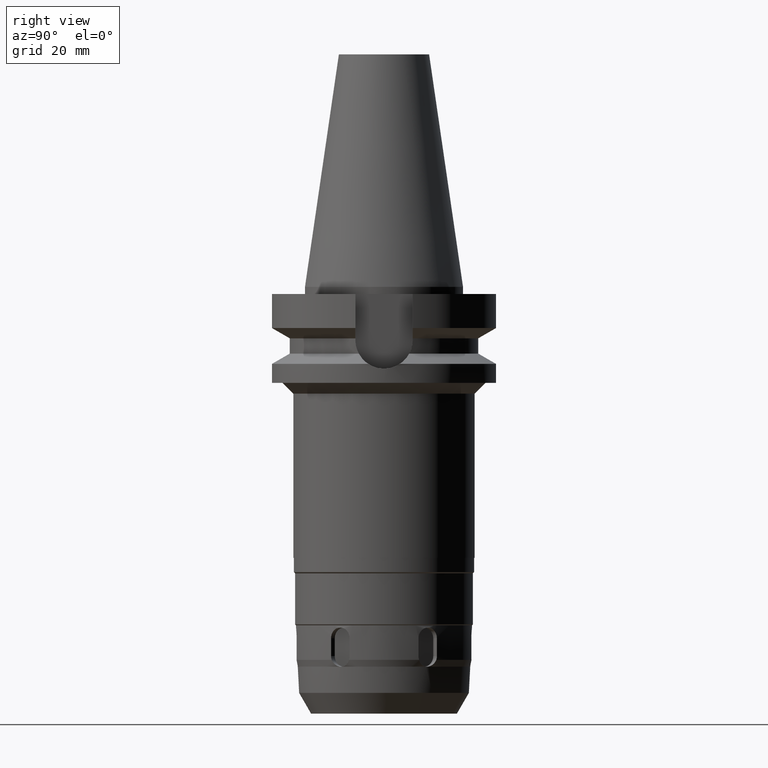
[diagram: clean part render]
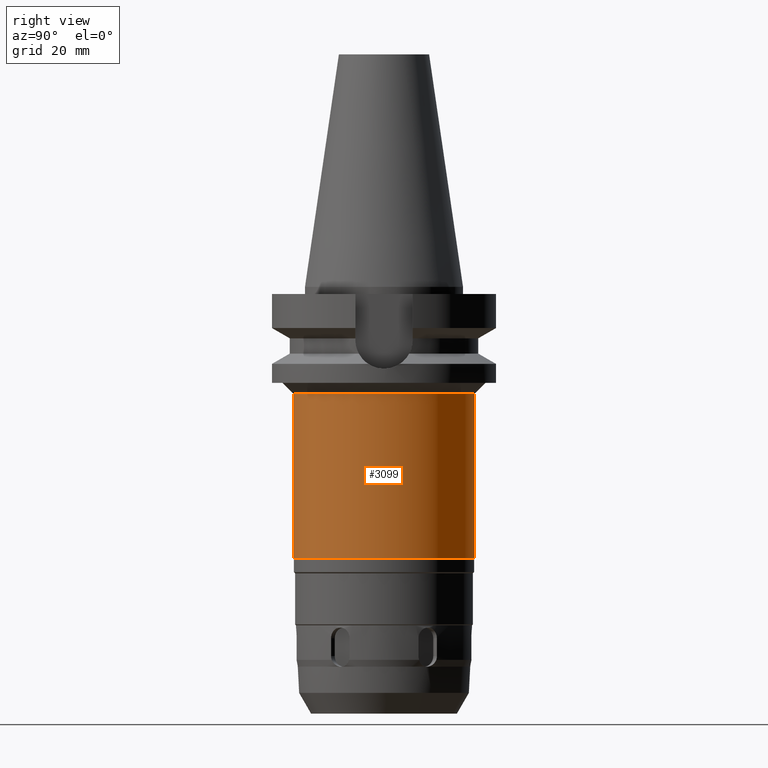
[diagram: same view with one face highlighted and labeled with its STEP entity id]
A machine part, right view. The second image highlights one B-rep face of the part: STEP entity #3099.
In plain terms, the highlighted cylindrical surface (partial cylindrical patch) has radius 25.5 mm, axis along (0, 0, -1).
Its self-contained STEP definition (entity closure, byte-faithful):
#681=CARTESIAN_POINT('',(0.E0,0.E0,-3.E1));
#682=DIRECTION('',(0.E0,0.E0,-1.E0));
#683=DIRECTION('',(0.E0,1.E0,0.E0));
#684=AXIS2_PLACEMENT_3D('',#681,#682,#683);
#689=DIRECTION('',(0.E0,0.E0,-1.E0));
#690=VECTOR('',#689,4.62E1);
#691=CARTESIAN_POINT('',(0.E0,2.55E1,-3.E1));
#692=LINE('',#691,#690);
#696=DIRECTION('',(0.E0,0.E0,-1.E0));
#697=VECTOR('',#696,4.62E1);
#698=CARTESIAN_POINT('',(0.E0,-2.55E1,-3.E1));
#699=LINE('',#698,#697);
#703=CARTESIAN_POINT('',(0.E0,2.139090564071E-14,-7.62E1));
#704=DIRECTION('',(0.E0,0.E0,1.E0));
#705=DIRECTION('',(0.E0,-1.E0,0.E0));
#706=AXIS2_PLACEMENT_3D('',#703,#704,#705);
#2481=CARTESIAN_POINT('',(0.E0,-2.55E1,-7.62E1));
#2482=CARTESIAN_POINT('',(0.E0,2.55E1,-7.62E1));
#2483=VERTEX_POINT('',#2481);
#2484=VERTEX_POINT('',#2482);
#2485=CARTESIAN_POINT('',(0.E0,2.55E1,-3.E1));
#2486=VERTEX_POINT('',#2485);
#2487=CARTESIAN_POINT('',(0.E0,-2.55E1,-3.E1));
#2488=VERTEX_POINT('',#2487);
#3085=CARTESIAN_POINT('',(0.E0,2.139090564071E-14,7.467E1));
#3086=DIRECTION('',(0.E0,0.E0,-1.E0));
#3087=DIRECTION('',(0.E0,-1.E0,0.E0));
#3088=AXIS2_PLACEMENT_3D('',#3085,#3086,#3087);
#3089=CYLINDRICAL_SURFACE('',#3088,2.55E1);
#3091=ORIENTED_EDGE('',*,*,#3090,.T.);
#3093=ORIENTED_EDGE('',*,*,#3092,.F.);
#3095=ORIENTED_EDGE('',*,*,#3094,.F.);
#3096=ORIENTED_EDGE('',*,*,#3078,.F.);
#3097=EDGE_LOOP('',(#3091,#3093,#3095,#3096));
#3098=FACE_OUTER_BOUND('',#3097,.F.);
#685=CIRCLE('',#684,2.55E1);
#707=CIRCLE('',#706,2.55E1);
#3078=EDGE_CURVE('',#2486,#2488,#685,.T.);
#3090=EDGE_CURVE('',#2486,#2484,#692,.T.);
#3092=EDGE_CURVE('',#2483,#2484,#707,.T.);
#3094=EDGE_CURVE('',#2488,#2483,#699,.T.);
#3099=ADVANCED_FACE('',(#3098),#3089,.T.);